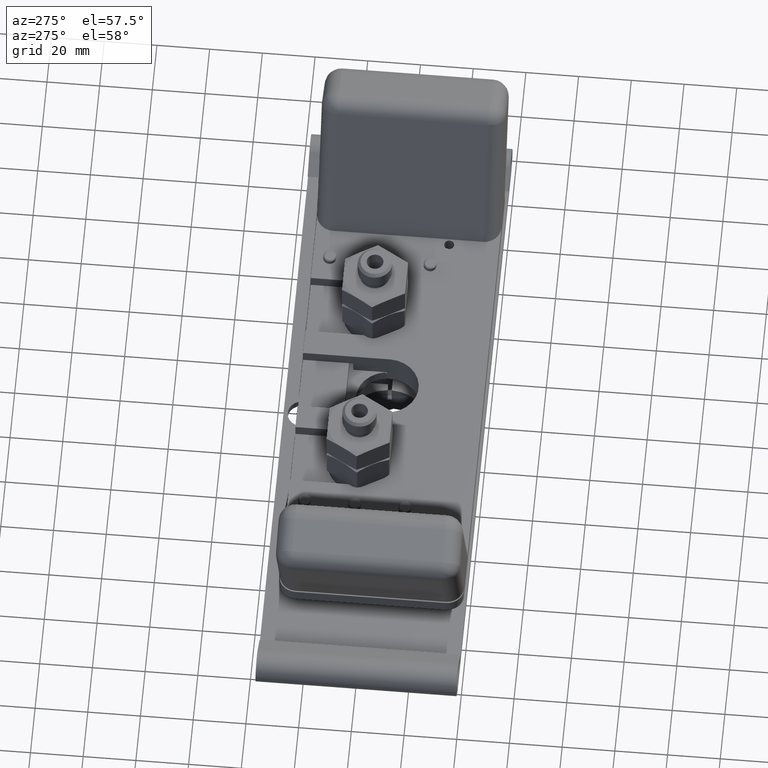
[diagram: clean part render]
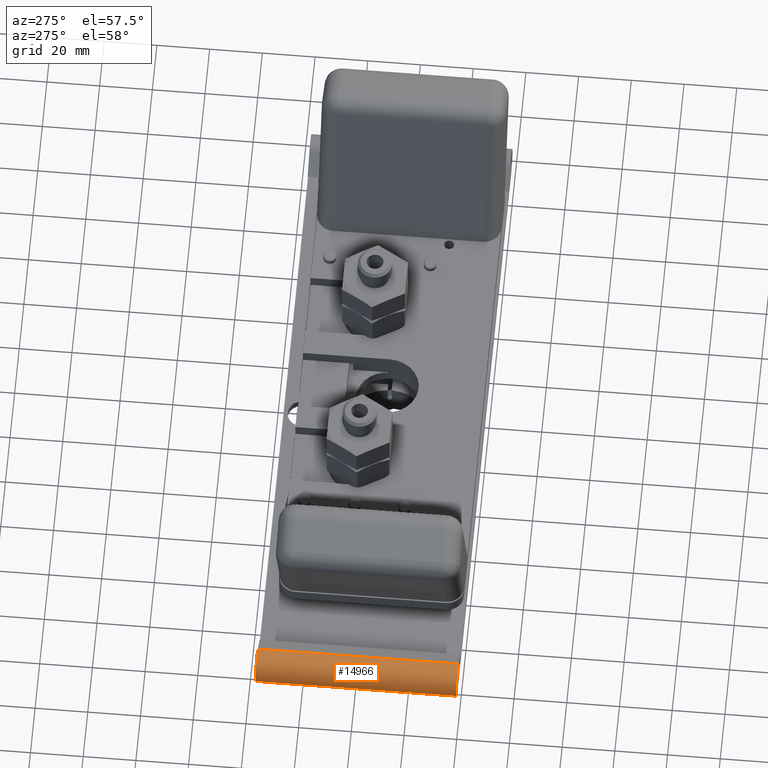
[diagram: same view with one face highlighted and labeled with its STEP entity id]
A machine part, auxiliary view. The second image highlights one B-rep face of the part: STEP entity #14966.
In plain terms, the highlighted cylindrical surface (edge-blend (fillet) strip) has radius 6.3398 mm, axis along (0, -1, 0).
Its self-contained STEP definition (entity closure, byte-faithful):
#672=CARTESIAN_POINT('',(-4.550324918512E0,0.E0,2.496E-1));
#673=DIRECTION('',(0.E0,1.E0,0.E0));
#674=DIRECTION('',(0.E0,0.E0,-1.E0));
#675=AXIS2_PLACEMENT_3D('',#672,#673,#674);
#677=CARTESIAN_POINT('',(-4.550324918512E0,0.E0,2.496E-1));
#678=DIRECTION('',(0.E0,1.E0,0.E0));
#679=DIRECTION('',(0.E0,0.E0,1.E0));
#680=AXIS2_PLACEMENT_3D('',#677,#678,#679);
#686=DIRECTION('',(1.776356839400E-14,-1.E0,2.551662584930E-14));
#687=VECTOR('',#686,3.E0);
#688=CARTESIAN_POINT('',(-4.407160239999E0,3.E0,4.540603502545E-1));
#689=LINE('',#688,#687);
#690=DIRECTION('',(0.E0,1.E0,0.E0));
#691=VECTOR('',#690,3.E0);
#692=CARTESIAN_POINT('',(-4.550324918512E0,0.E0,0.E0));
#693=LINE('',#692,#691);
#698=CARTESIAN_POINT('',(-4.550324918512E0,3.E0,2.496E-1));
#699=DIRECTION('',(0.E0,-1.E0,0.E0));
#700=DIRECTION('',(5.735764363519E-1,0.E0,8.191520442884E-1));
#701=AXIS2_PLACEMENT_3D('',#698,#699,#700);
#703=CARTESIAN_POINT('',(-4.550324918512E0,3.E0,2.496E-1));
#704=DIRECTION('',(0.E0,-1.E0,0.E0));
#705=DIRECTION('',(0.E0,0.E0,1.E0));
#706=AXIS2_PLACEMENT_3D('',#703,#704,#705);
#12023=CARTESIAN_POINT('',(-4.550324918512E0,3.E0,0.E0));
#12024=VERTEX_POINT('',#12023);
#12025=CARTESIAN_POINT('',(-4.550324918512E0,0.E0,0.E0));
#12026=VERTEX_POINT('',#12025);
#12149=CARTESIAN_POINT('',(-4.407160239999E0,0.E0,4.540603502545E-1));
#12151=VERTEX_POINT('',#12149);
#12157=CARTESIAN_POINT('',(-4.550324918512E0,0.E0,4.992E-1));
#12158=VERTEX_POINT('',#12157);
#12163=CARTESIAN_POINT('',(-4.407160239999E0,3.E0,4.540603502545E-1));
#12164=VERTEX_POINT('',#12163);
#12167=CARTESIAN_POINT('',(-4.550324918512E0,3.E0,4.992E-1));
#12168=VERTEX_POINT('',#12167);
#14951=CARTESIAN_POINT('',(-4.550324918512E0,3.E0,2.496E-1));
#14952=DIRECTION('',(0.E0,-1.E0,0.E0));
#14953=DIRECTION('',(0.E0,0.E0,1.E0));
#14954=AXIS2_PLACEMENT_3D('',#14951,#14952,#14953);
#14955=CYLINDRICAL_SURFACE('',#14954,2.496E-1);
#14956=ORIENTED_EDGE('',*,*,#14934,.T.);
#14957=ORIENTED_EDGE('',*,*,#14895,.F.);
#14958=ORIENTED_EDGE('',*,*,#14893,.F.);
#14959=ORIENTED_EDGE('',*,*,#14632,.T.);
#14961=ORIENTED_EDGE('',*,*,#14960,.F.);
#14963=ORIENTED_EDGE('',*,*,#14962,.F.);
#14964=EDGE_LOOP('',(#14956,#14957,#14958,#14959,#14961,#14963));
#14965=FACE_OUTER_BOUND('',#14964,.F.);
#676=CIRCLE('',#675,2.496E-1);
#681=CIRCLE('',#680,2.496E-1);
#702=CIRCLE('',#701,2.496E-1);
#707=CIRCLE('',#706,2.496E-1);
#14632=EDGE_CURVE('',#12026,#12024,#693,.T.);
#14893=EDGE_CURVE('',#12026,#12158,#676,.T.);
#14895=EDGE_CURVE('',#12158,#12151,#681,.T.);
#14934=EDGE_CURVE('',#12164,#12151,#689,.T.);
#14960=EDGE_CURVE('',#12168,#12024,#707,.T.);
#14962=EDGE_CURVE('',#12164,#12168,#702,.T.);
#14966=ADVANCED_FACE('',(#14965),#14955,.T.);